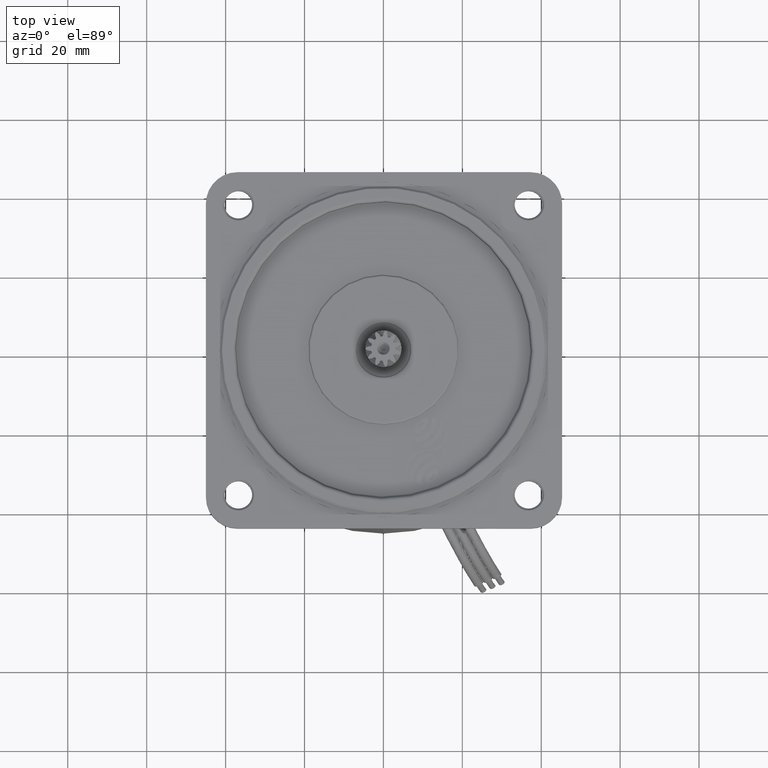
[diagram: clean part render]
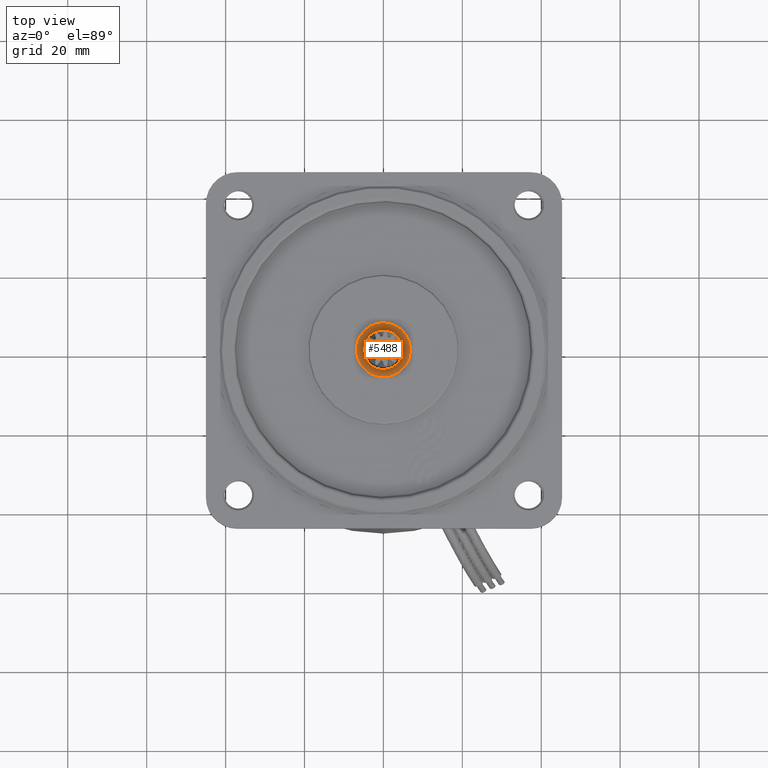
[diagram: same view with one face highlighted and labeled with its STEP entity id]
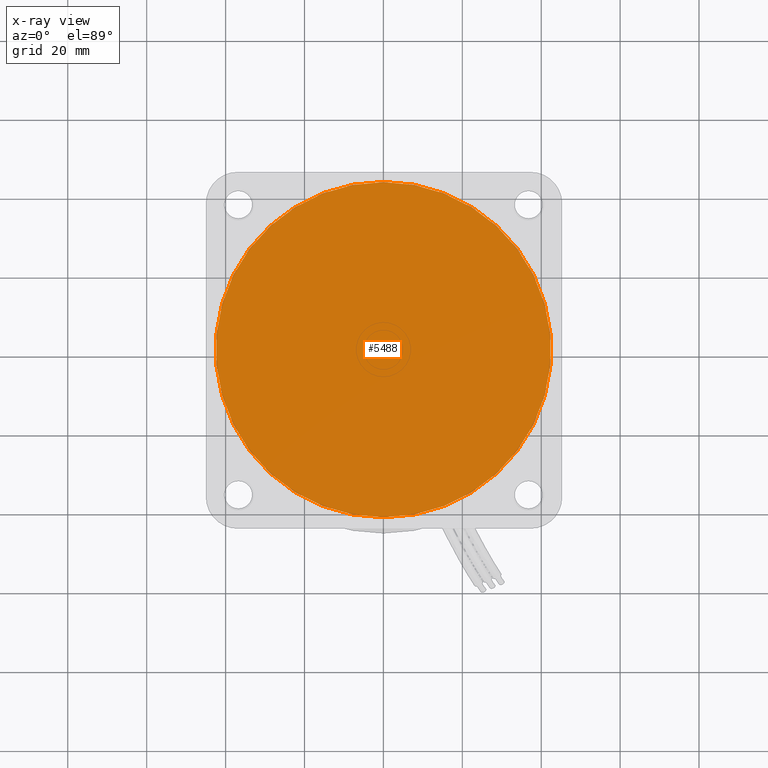
[diagram: x-ray of the same camera — body ghosted, the highlighted face saturated]
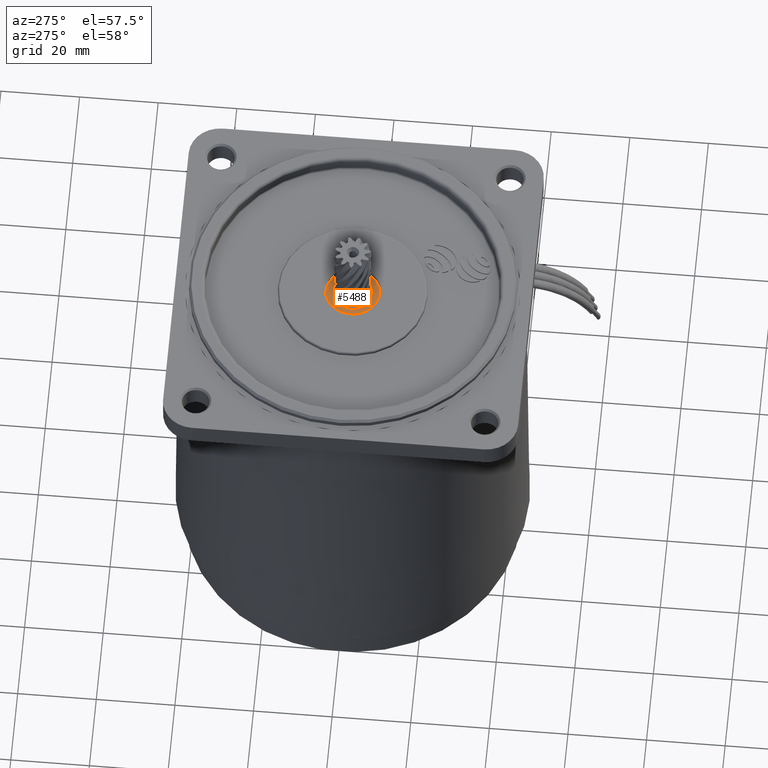
[diagram: same view with one face highlighted and labeled with its STEP entity id]
A machine part, top view. The second image highlights one B-rep face of the part: STEP entity #5488.
The next image is the same camera in x-ray: the body ghosted, the highlighted face saturated — about 0% of this face is hidden behind the body in this view.
A second angle (auxiliary view) of the same face is appended — the face is thin or edge-on in the first view.
In plain terms, the highlighted planar face has unit normal (0, 0, 1).
Its self-contained STEP definition (entity closure, byte-faithful):
#671 = DIRECTION ( 'NONE',  ( 1.000000000000000000, 0.0000000000000000000, 0.0000000000000000000 ) ) ;
#672 = CARTESIAN_POINT ( 'NONE',  ( 103.4000000000000100, 0.0000000000000000000, 0.0000000000000000000 ) ) ;
#737 = AXIS2_PLACEMENT_3D ( 'NONE', #672, #671, #768 ) ;
#750 = DIRECTION ( 'NONE',  ( 0.0000000000000000000, 0.0000000000000000000, -1.000000000000000000 ) ) ;
#751 = AXIS2_PLACEMENT_3D ( 'NONE', #756, #758, #750 ) ;
#756 = CARTESIAN_POINT ( 'NONE',  ( 103.4000000000000100, 0.0000000000000000000, 0.0000000000000000000 ) ) ;
#758 = DIRECTION ( 'NONE',  ( 1.000000000000000000, 0.0000000000000000000, 0.0000000000000000000 ) ) ;
#768 = DIRECTION ( 'NONE',  ( 0.0000000000000000000, 0.0000000000000000000, -1.000000000000000000 ) ) ;
#773 = CIRCLE ( 'NONE', #751, 42.50000000000000700 ) ;
#777 = PLANE ( 'NONE',  #737 ) ;
#778 = FACE_OUTER_BOUND ( 'NONE', #5400, .T. ) ;
#5400 = EDGE_LOOP ( 'NONE', ( #5516, #5492 ) ) ;
#5488 = ADVANCED_FACE ( 'NONE', ( #778 ), #777, .T. ) ;
#5492 = ORIENTED_EDGE ( 'NONE', *, *, #17226, .T. ) ;
#5507 = EDGE_CURVE ( 'NONE', #17222, #17242, #773, .T. ) ;
#5516 = ORIENTED_EDGE ( 'NONE', *, *, #5507, .T. ) ;
#11630 = CIRCLE ( 'NONE', #11683, 42.50000000000000700 ) ;
#11656 = CARTESIAN_POINT ( 'NONE',  ( 103.4000000000000100, 0.0000000000000000000, -42.50000000000000700 ) ) ;
#11679 = DIRECTION ( 'NONE',  ( 0.0000000000000000000, 0.0000000000000000000, -1.000000000000000000 ) ) ;
#11680 = DIRECTION ( 'NONE',  ( 1.000000000000000000, 0.0000000000000000000, 0.0000000000000000000 ) ) ;
#11681 = CARTESIAN_POINT ( 'NONE',  ( 103.4000000000000100, 0.0000000000000000000, 0.0000000000000000000 ) ) ;
#11683 = AXIS2_PLACEMENT_3D ( 'NONE', #11681, #11680, #11679 ) ;
#11705 = CARTESIAN_POINT ( 'NONE',  ( 103.4000000000000100, 5.204748896376252500E-015, 42.50000000000000700 ) ) ;
#17222 = VERTEX_POINT ( 'NONE', #11656 ) ;
#17226 = EDGE_CURVE ( 'NONE', #17242, #17222, #11630, .T. ) ;
#17242 = VERTEX_POINT ( 'NONE', #11705 ) ;